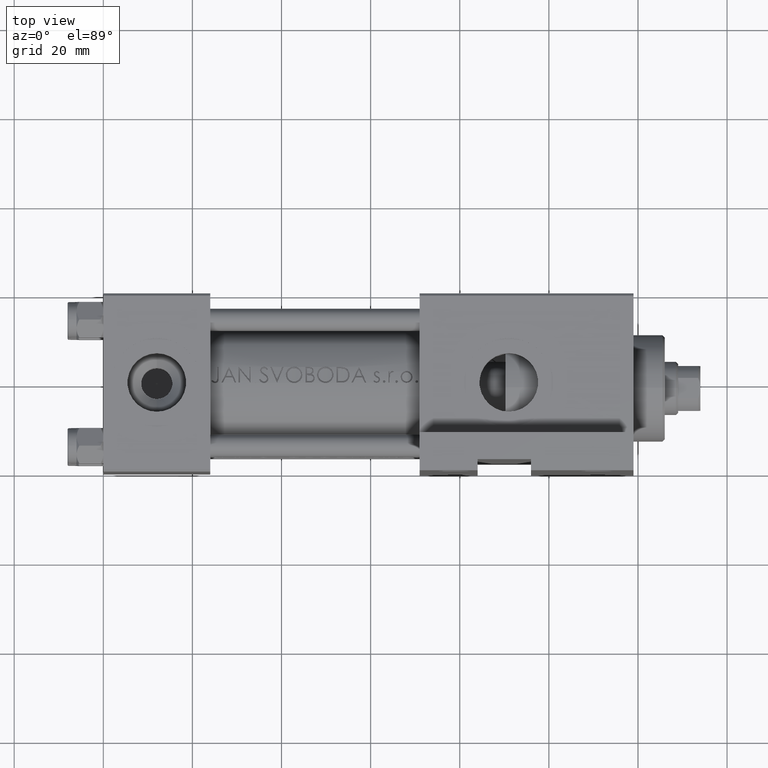
[diagram: clean part render]
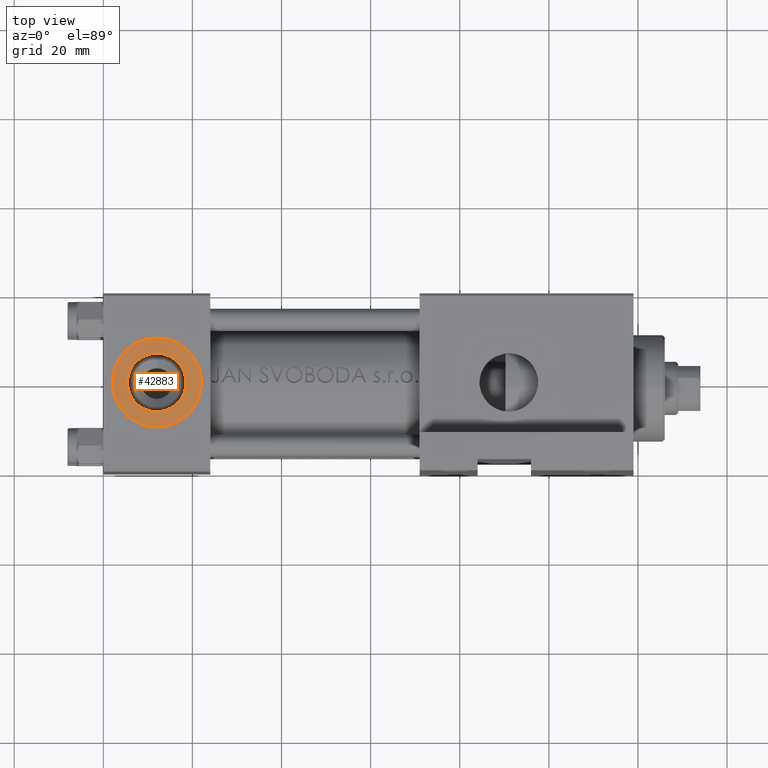
[diagram: same view with one face highlighted and labeled with its STEP entity id]
A machine part, top view. The second image highlights one B-rep face of the part: STEP entity #42883.
In plain terms, the highlighted planar face has unit normal (0, -0, 1).
Its self-contained STEP definition (entity closure, byte-faithful):
#584 = EDGE_CURVE ( 'NONE', #29468, #35164, #29648, .T. ) ;
#1033 = CARTESIAN_POINT ( 'NONE',  ( 12.00000000000000000, -19.80000000000000426, 6.579999999999996518 ) ) ;
#1809 = CARTESIAN_POINT ( 'NONE',  ( 12.00000000000000000, -19.80000000000000426, -9.999999999999998224 ) ) ;
#3066 = FACE_BOUND ( 'NONE', #28788, .T. ) ;
#4737 = CARTESIAN_POINT ( 'NONE',  ( 12.00000000000000000, -19.80000000000000426, -6.580000000000000071 ) ) ;
#6235 = AXIS2_PLACEMENT_3D ( 'NONE', #26081, #45121, #33599 ) ;
#7339 = CARTESIAN_POINT ( 'NONE',  ( 12.00000000000000000, -19.80000000000000426, -1.717376241217039812E-15 ) ) ;
#8980 = EDGE_CURVE ( 'NONE', #35164, #29468, #47859, .T. ) ;
#10418 = AXIS2_PLACEMENT_3D ( 'NONE', #47307, #36503, #16244 ) ;
#13265 = ORIENTED_EDGE ( 'NONE', *, *, #584, .T. ) ;
#14338 = DIRECTION ( 'NONE',  ( 0.000000000000000000, 0.000000000000000000, -1.000000000000000000 ) ) ;
#16226 = EDGE_LOOP ( 'NONE', ( #38249, #13265 ) ) ;
#16244 = DIRECTION ( 'NONE',  ( 0.000000000000000000, 0.000000000000000000, -1.000000000000000000 ) ) ;
#19117 = PLANE ( 'NONE',  #44692 ) ;
#19608 = CARTESIAN_POINT ( 'NONE',  ( 12.00000000000000000, -19.80000000000000426, -1.717376241217039812E-15 ) ) ;
#21416 = VERTEX_POINT ( 'NONE', #4737 ) ;
#24658 = CIRCLE ( 'NONE', #31065, 6.579999999999998295 ) ;
#25553 = VERTEX_POINT ( 'NONE', #1033 ) ;
#26081 = CARTESIAN_POINT ( 'NONE',  ( 12.00000000000000000, -19.80000000000000426, -1.717376241217039812E-15 ) ) ;
#27988 = ORIENTED_EDGE ( 'NONE', *, *, #45031, .F. ) ;
#28788 = EDGE_LOOP ( 'NONE', ( #40674, #27988 ) ) ;
#29468 = VERTEX_POINT ( 'NONE', #32316 ) ;
#29648 = CIRCLE ( 'NONE', #10418, 9.999999999999996447 ) ;
#30656 = DIRECTION ( 'NONE',  ( 0.000000000000000000, 8.673617379884036705E-17, -1.000000000000000000 ) ) ;
#31065 = AXIS2_PLACEMENT_3D ( 'NONE', #34378, #41136, #14338 ) ;
#32316 = CARTESIAN_POINT ( 'NONE',  ( 12.00000000000000178, -19.80000000000000426, 9.999999999999994671 ) ) ;
#33599 = DIRECTION ( 'NONE',  ( 0.000000000000000000, 0.000000000000000000, -1.000000000000000000 ) ) ;
#34287 = CIRCLE ( 'NONE', #39087, 6.579999999999998295 ) ;
#34378 = CARTESIAN_POINT ( 'NONE',  ( 12.00000000000000000, -19.80000000000000426, -1.717376241217039812E-15 ) ) ;
#35164 = VERTEX_POINT ( 'NONE', #1809 ) ;
#36503 = DIRECTION ( 'NONE',  ( 0.000000000000000000, -1.000000000000000000, -8.673617379884036705E-17 ) ) ;
#38249 = ORIENTED_EDGE ( 'NONE', *, *, #8980, .T. ) ;
#39087 = AXIS2_PLACEMENT_3D ( 'NONE', #19608, #39124, #42417 ) ;
#39124 = DIRECTION ( 'NONE',  ( 0.000000000000000000, -1.000000000000000000, -8.673617379884036705E-17 ) ) ;
#40674 = ORIENTED_EDGE ( 'NONE', *, *, #43006, .F. ) ;
#41136 = DIRECTION ( 'NONE',  ( 0.000000000000000000, -1.000000000000000000, -8.673617379884036705E-17 ) ) ;
#41175 = FACE_OUTER_BOUND ( 'NONE', #16226, .T. ) ;
#41421 = DIRECTION ( 'NONE',  ( 0.000000000000000000, -1.000000000000000000, -8.673617379884036705E-17 ) ) ;
#42417 = DIRECTION ( 'NONE',  ( 0.000000000000000000, 0.000000000000000000, -1.000000000000000000 ) ) ;
#42883 = ADVANCED_FACE ( 'NONE', ( #3066, #41175 ), #19117, .T. ) ;
#43006 = EDGE_CURVE ( 'NONE', #21416, #25553, #34287, .T. ) ;
#44692 = AXIS2_PLACEMENT_3D ( 'NONE', #7339, #41421, #30656 ) ;
#45031 = EDGE_CURVE ( 'NONE', #25553, #21416, #24658, .T. ) ;
#45121 = DIRECTION ( 'NONE',  ( 0.000000000000000000, -1.000000000000000000, -8.673617379884036705E-17 ) ) ;
#47307 = CARTESIAN_POINT ( 'NONE',  ( 12.00000000000000000, -19.80000000000000426, -1.717376241217039812E-15 ) ) ;
#47859 = CIRCLE ( 'NONE', #6235, 9.999999999999996447 ) ;